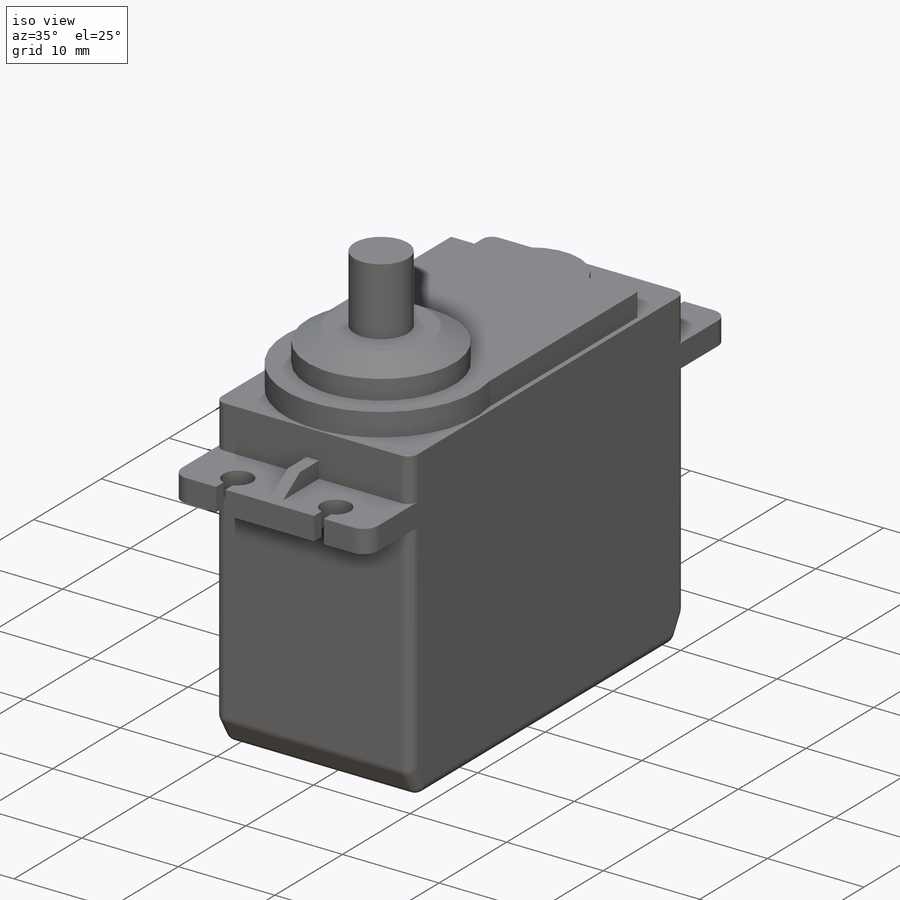
[diagram: iso view]
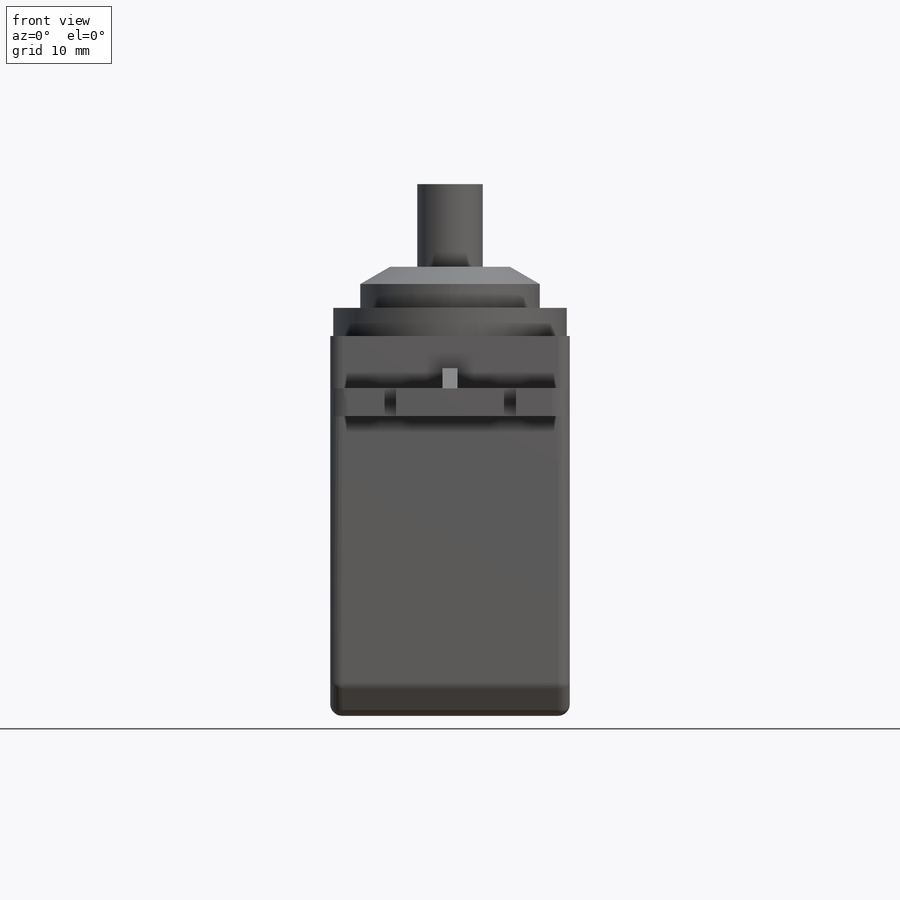
[diagram: front view]
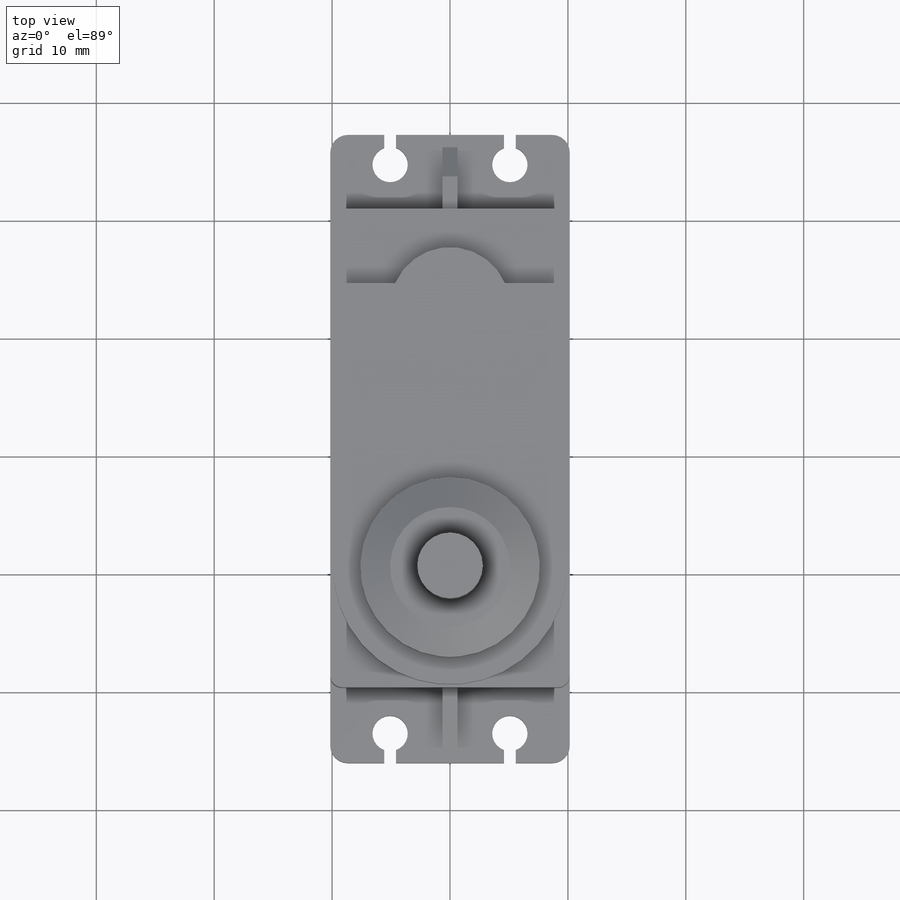
[diagram: top view]
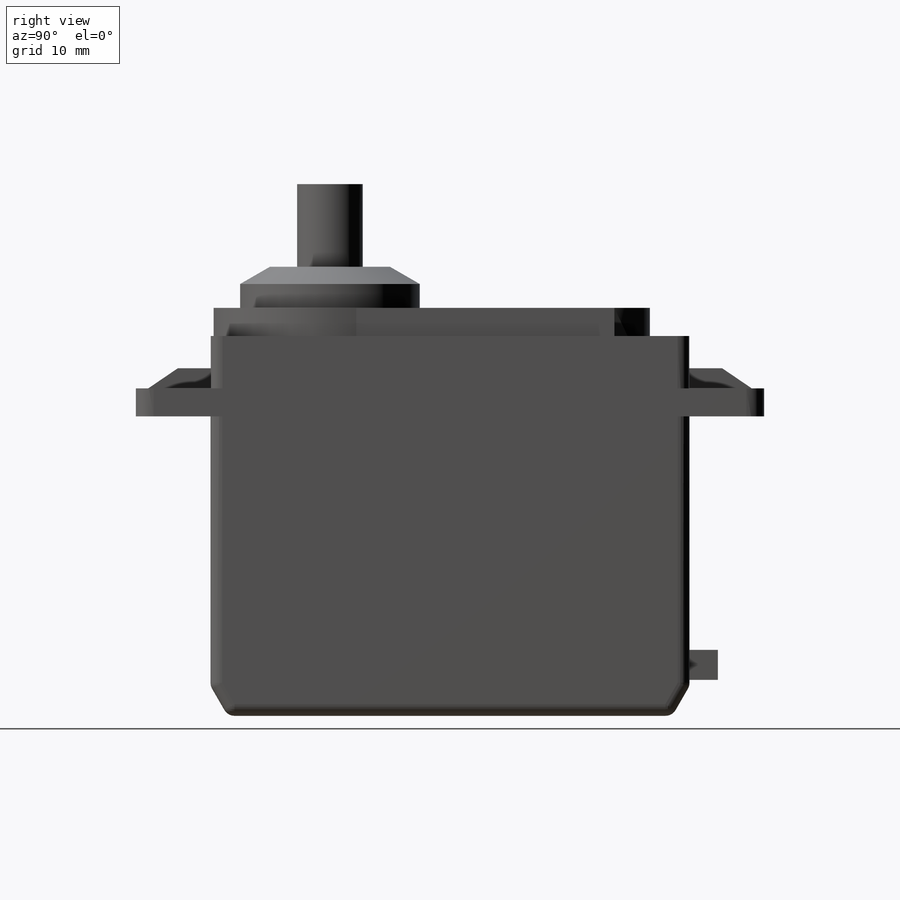
[diagram: right view]
SOLIDWORKS PART (.sldprt)
format: sldprt  version: not decoded by parser v0  size: 443,904 bytes
history: native  units: mm
features: sketch x8, extrude x8, plane x2, chamfer x2, fillet x2, material x1, mirror x1, move_body x1 (+12 scaffold rows collapsed; 1 parser-record rows omitted)
feature tree (38):
  scaffold x12  (default folders/planes/origin — collapsed)
  material  "Material <not specified>"
  sketch  "Sketch1"  dims[c1.D1=20.32mm c1.D2=40.64mm c1.D3=10.16mm c1.D4=10.16mm c2.D3=10.16mm]
  extrude  "Boss-Extrude1"  Depth=25.4mm
  sketch  "Sketch2"  dims[D1=6.35mm]
  extrude  "Boss-Extrude2"  Depth=2.38mm
  sketch  "Sketch3"  dims[D1=6.35mm]
  extrude  "Boss-Extrude3"  Depth=4.445mm
  sketch  "Sketch4"  dims[D1=19.812mm D4=5.08mm D2=19.304mm D3=9.652mm D5=2.032mm D6=6.35mm]
  extrude  "Boss-Extrude4"  Depth=2.38mm
  plane  "Plane1"  Offset=38.1mm
  sketch  "Sketch6"  dims[D1=15.24mm]
  extrude  "Boss-Extrude5"  [1 undecoded]
  chamfer  "Chamfer1"  Distance=2.54mm Angle=30deg
  sketch  "Sketch8"  dims[D1=2.8mm D2=5.3mm D3=1.7mm]
  extrude  "Boss-Extrude6"  Depth=1.27mm
  plane  "Plane2"  Offset=20.32mm
  mirror  "Mirror1"
  sketch  "Sketch9"  dims[D1=5.56mm]
  extrude  "Boss-Extrude7"  Depth=7mm
  chamfer  "Chamfer2"  Distance=2.54mm Angle=30deg
  fillet  "Fillet1"  Radius=1mm
  fillet  "Fillet2"  Radius=1.5mm
  sketch  "Sketch10"  dims[D1=6.35mm D2=2.54mm D3=3.175mm D4=3.05mm D5=0.635mm]
  extrude  "Boss-Extrude8"  Depth=2.4mm
  move_body  "Body-Move/Copy1"
  parser-record x1  (decoder bookkeeping rows leaked as tree rows — omitted from the tree; the rows remain in map.json)
decode coverage: 19 of 22 modeling features carry decoded parameters
note: 1 parameter value undecoded
note: suppression state not decoded; provenance and decode notes live in map.json
